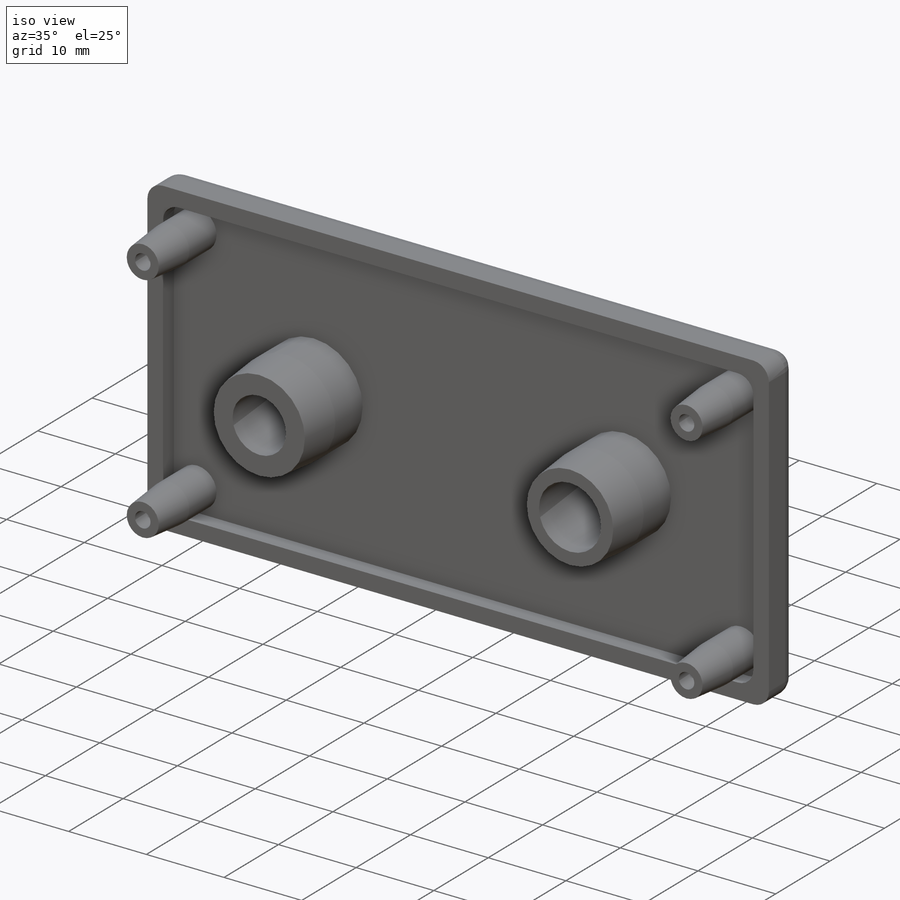
[diagram: iso view]
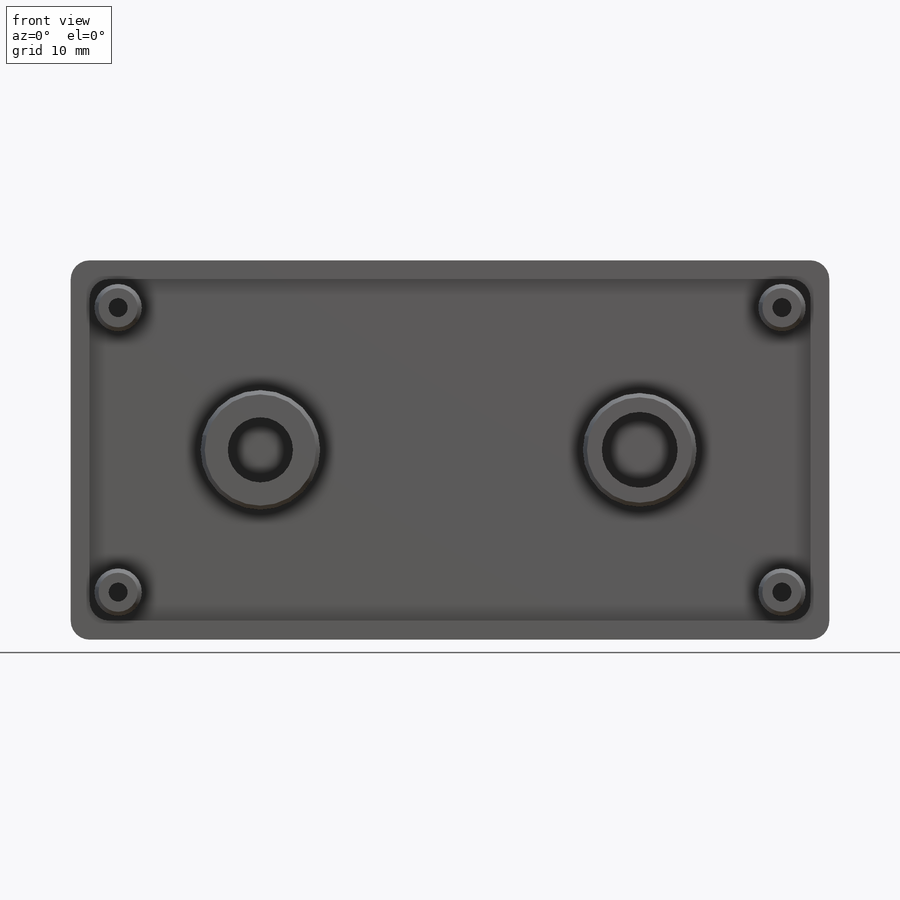
[diagram: front view]
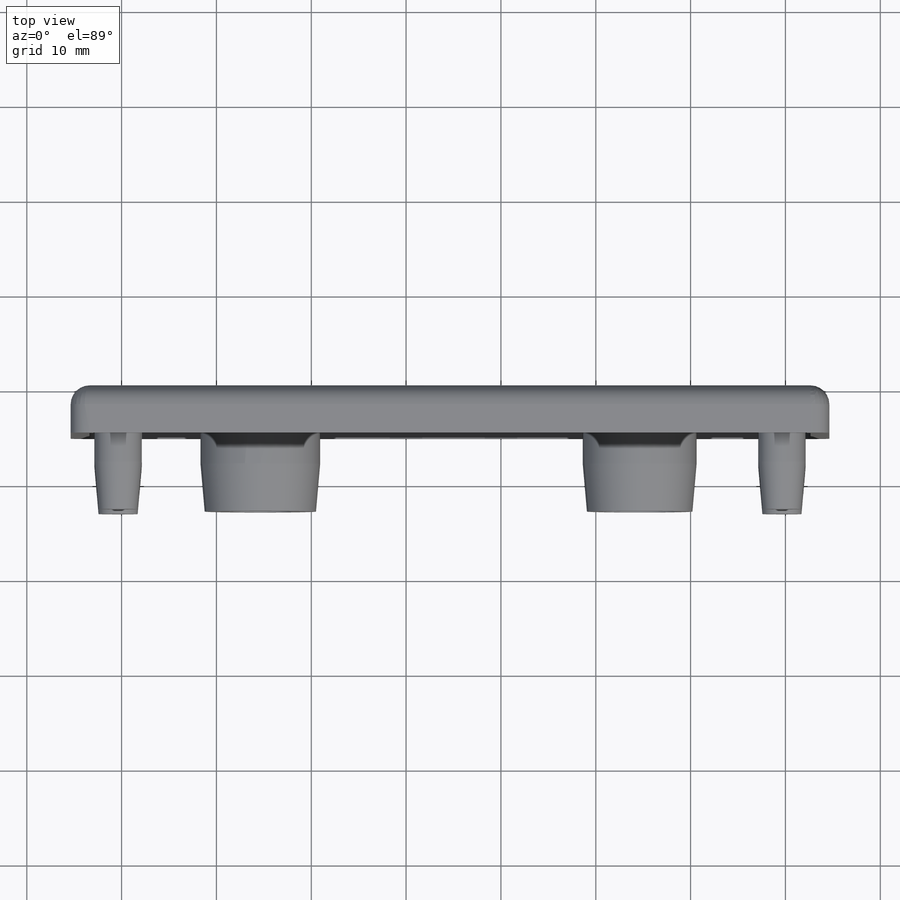
[diagram: top view]
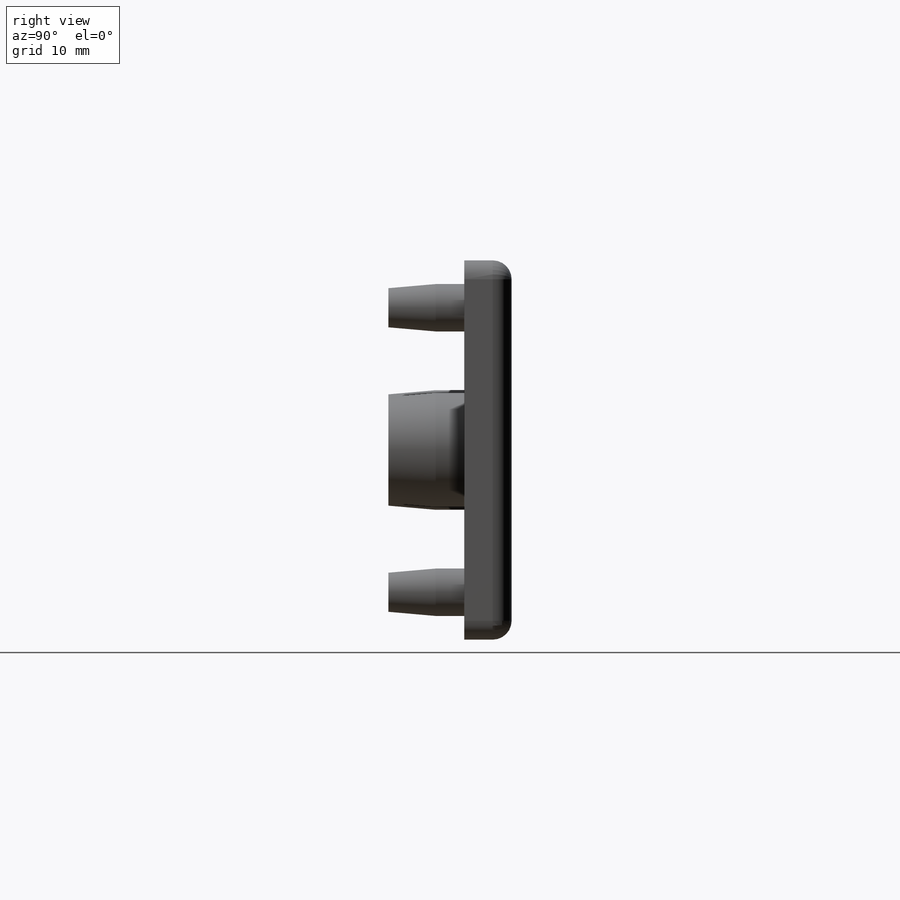
[diagram: right view]
SOLIDWORKS PART (.sldprt)
format: sldprt  version: not decoded by parser v0  size: 283,648 bytes
history: native  units: mm
features: sketch x4, plane x3, extrude x3, fillet x3, chamfer x3, material x1, cut_extrude x1 (+12 scaffold rows collapsed)
feature tree (30):
  scaffold x12  (default folders/planes/origin — collapsed)
  material  "材质 <未指定>"
  plane  "前视基准面"
  plane  "上视基准面"
  plane  "右视基准面"
  sketch  "草图1"  dims[D1=80.0mm D2=40.0mm]
  extrude  "拉伸1"  Depth=5mm
  fillet  "圆角1"  Radius=2mm
  sketch  "草图2"  dims[D1=76.0mm D2=36.0mm D3=2.0mm D4=2.0mm]
  cut_extrude  "切除-拉伸1"  Depth=2mm
  fillet  "圆角2"  Radius=2mm
  fillet  "圆角3"  Radius=2mm
  sketch  "草图3"  dims[c1.D1=5.0mm c1.D2=5.0mm c1.D3=5.0mm c1.D4=5.0mm c1.D5=12.0mm c2.D3=5.0mm c2.D6=2.0mm c2.D7=2.0mm c2.D8=2.0mm c2.D9=2.0mm c2.D10=8.0mm c2.D11=5.0mm c2.D12=5.0mm c2.D13=5.0mm c2.D14=5.0mm c2.D15=5.0mm c2.D16=5.0mm c2.D17=5.0mm c2.D18=5.0mm c2.D19=20.0mm c2.D20=20.0mm]
  extrude  "拉伸2"  Depth=10mm
  chamfer  "倒角1"  Distance=5mm Angle=5deg
  sketch  "草图4"  dims[D1=20.0mm D2=20.0mm]
  extrude  "拉伸3"  Depth=10mm
  chamfer  "倒角2"  Distance=5mm Angle=5deg
  chamfer  "倒角4"  Distance=5mm Angle=5deg
decode coverage: 14 of 14 modeling features carry decoded parameters
note: suppression state not decoded; provenance and decode notes live in map.json
